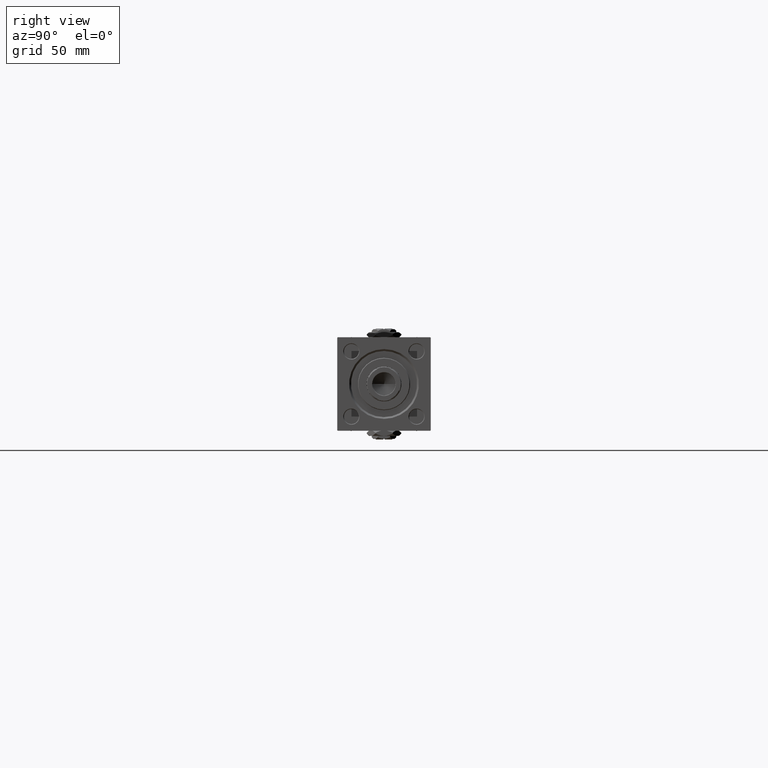
[diagram: clean part render]
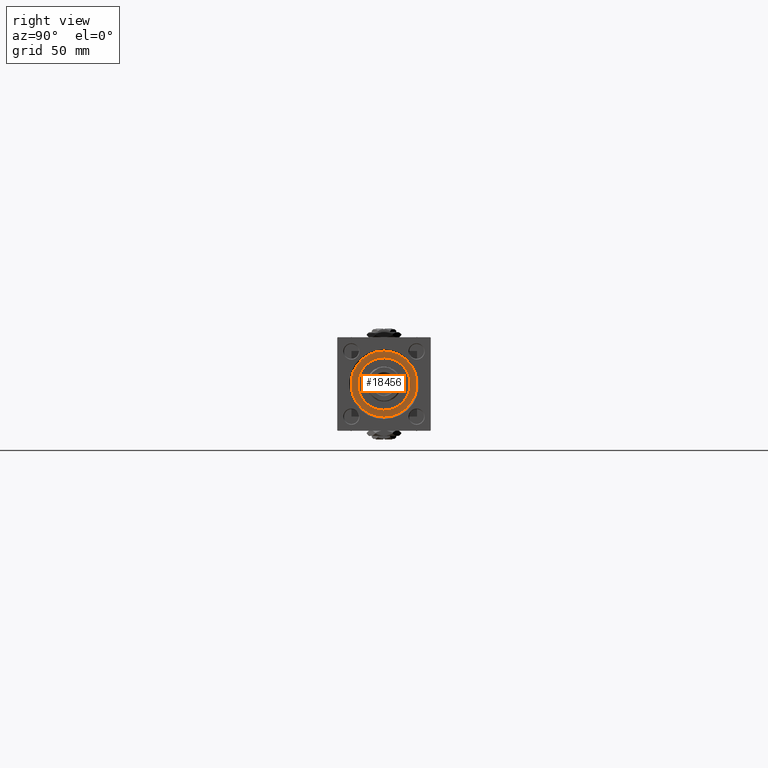
[diagram: same view with one face highlighted and labeled with its STEP entity id]
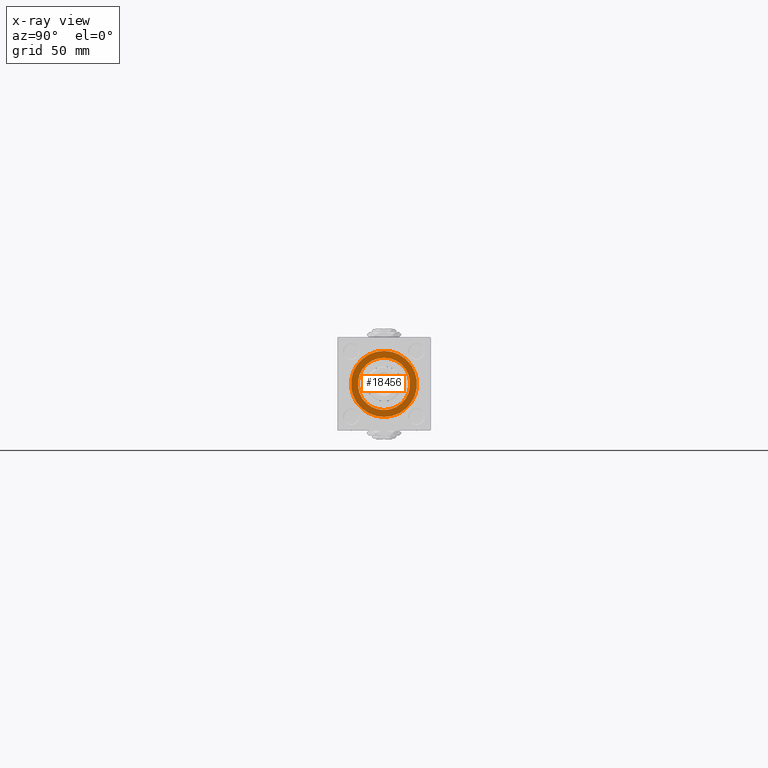
[diagram: x-ray of the same camera — body ghosted, the highlighted face saturated]
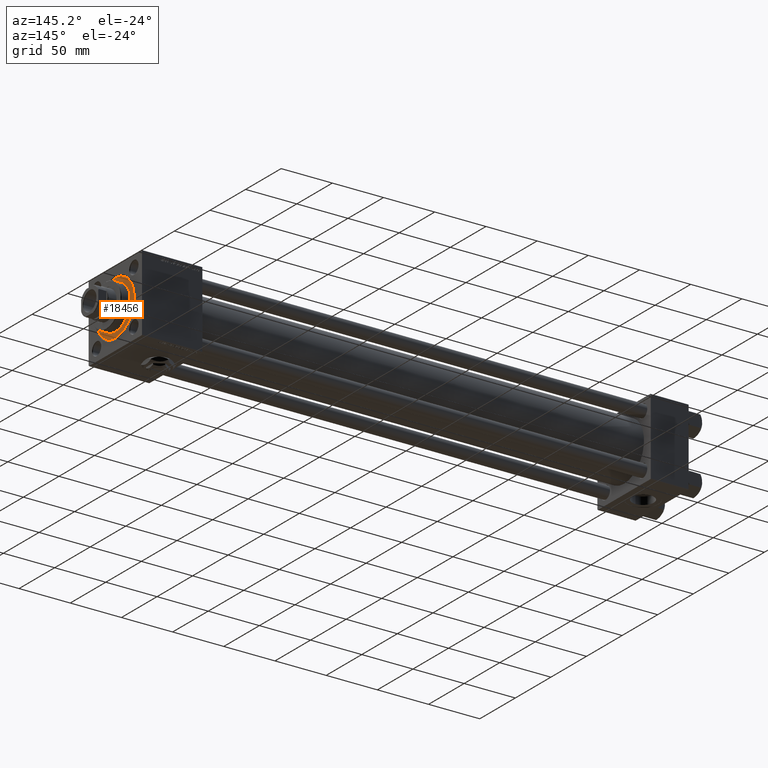
[diagram: same view with one face highlighted and labeled with its STEP entity id]
A machine part, right view. The second image highlights one B-rep face of the part: STEP entity #18456.
The next image is the same camera in x-ray: the body ghosted, the highlighted face saturated — about 0% of this face is hidden behind the body in this view.
A second angle (auxiliary view) of the same face is appended — the face is thin or edge-on in the first view.
In plain terms, the highlighted planar face has unit normal (1, 0, 0).
Its self-contained STEP definition (entity closure, byte-faithful):
#2032 = CIRCLE ( 'NONE', #33195, 26.50000000000000355 ) ;
#2436 = CIRCLE ( 'NONE', #17657, 21.00000000000000000 ) ;
#2910 = FACE_BOUND ( 'NONE', #36572, .T. ) ;
#7235 = CARTESIAN_POINT ( 'NONE',  ( 0.000000000000000000, 0.000000000000000000, 28.69999999999999929 ) ) ;
#10210 = DIRECTION ( 'NONE',  ( 0.000000000000000000, 0.000000000000000000, 1.000000000000000000 ) ) ;
#10229 = DIRECTION ( 'NONE',  ( 1.000000000000000000, 0.000000000000000000, 0.000000000000000000 ) ) ;
#10479 = CARTESIAN_POINT ( 'NONE',  ( 21.00000000000000000, 2.571758278209441661E-15, 28.69999999999999929 ) ) ;
#13944 = VERTEX_POINT ( 'NONE', #15686 ) ;
#14712 = ORIENTED_EDGE ( 'NONE', *, *, #34617, .F. ) ;
#14983 = EDGE_LOOP ( 'NONE', ( #45251, #23719 ) ) ;
#15056 = FACE_OUTER_BOUND ( 'NONE', #14983, .T. ) ;
#15389 = DIRECTION ( 'NONE',  ( 1.000000000000000000, 0.000000000000000000, 0.000000000000000000 ) ) ;
#15560 = PLANE ( 'NONE',  #23488 ) ;
#15686 = CARTESIAN_POINT ( 'NONE',  ( -26.50000000000000355, 0.000000000000000000, 28.69999999999999929 ) ) ;
#16461 = CARTESIAN_POINT ( 'NONE',  ( 0.000000000000000000, 0.000000000000000000, 28.69999999999999929 ) ) ;
#17657 = AXIS2_PLACEMENT_3D ( 'NONE', #7235, #34449, #15389 ) ;
#18456 = ADVANCED_FACE ( 'NONE', ( #2910, #15056 ), #15560, .T. ) ;
#19783 = CARTESIAN_POINT ( 'NONE',  ( 0.000000000000000000, 0.000000000000000000, 28.69999999999999929 ) ) ;
#22584 = CARTESIAN_POINT ( 'NONE',  ( 0.000000000000000000, 0.000000000000000000, 28.69999999999999929 ) ) ;
#23488 = AXIS2_PLACEMENT_3D ( 'NONE', #19783, #38836, #35909 ) ;
#23719 = ORIENTED_EDGE ( 'NONE', *, *, #30702, .T. ) ;
#28160 = CIRCLE ( 'NONE', #34936, 21.00000000000000000 ) ;
#28518 = VERTEX_POINT ( 'NONE', #36008 ) ;
#29405 = DIRECTION ( 'NONE',  ( 0.000000000000000000, 0.000000000000000000, 1.000000000000000000 ) ) ;
#30052 = EDGE_CURVE ( 'NONE', #13944, #46669, #2032, .T. ) ;
#30702 = EDGE_CURVE ( 'NONE', #46669, #13944, #34078, .T. ) ;
#31331 = CARTESIAN_POINT ( 'NONE',  ( 26.50000000000000355, 3.245314017740486554E-15, 28.69999999999999929 ) ) ;
#33195 = AXIS2_PLACEMENT_3D ( 'NONE', #16461, #29405, #44477 ) ;
#34078 = CIRCLE ( 'NONE', #48402, 26.50000000000000355 ) ;
#34449 = DIRECTION ( 'NONE',  ( 0.000000000000000000, 0.000000000000000000, 1.000000000000000000 ) ) ;
#34617 = EDGE_CURVE ( 'NONE', #42680, #28518, #28160, .T. ) ;
#34936 = AXIS2_PLACEMENT_3D ( 'NONE', #50115, #50640, #10229 ) ;
#35909 = DIRECTION ( 'NONE',  ( 1.000000000000000000, 0.000000000000000000, -0.000000000000000000 ) ) ;
#36008 = CARTESIAN_POINT ( 'NONE',  ( -21.00000000000000000, 0.000000000000000000, 28.69999999999999929 ) ) ;
#36572 = EDGE_LOOP ( 'NONE', ( #42094, #14712 ) ) ;
#38836 = DIRECTION ( 'NONE',  ( 0.000000000000000000, 0.000000000000000000, 1.000000000000000000 ) ) ;
#42094 = ORIENTED_EDGE ( 'NONE', *, *, #46180, .F. ) ;
#42680 = VERTEX_POINT ( 'NONE', #10479 ) ;
#44477 = DIRECTION ( 'NONE',  ( 1.000000000000000000, 0.000000000000000000, 0.000000000000000000 ) ) ;
#45251 = ORIENTED_EDGE ( 'NONE', *, *, #30052, .T. ) ;
#46180 = EDGE_CURVE ( 'NONE', #28518, #42680, #2436, .T. ) ;
#46635 = DIRECTION ( 'NONE',  ( 1.000000000000000000, 0.000000000000000000, 0.000000000000000000 ) ) ;
#46669 = VERTEX_POINT ( 'NONE', #31331 ) ;
#48402 = AXIS2_PLACEMENT_3D ( 'NONE', #22584, #10210, #46635 ) ;
#50115 = CARTESIAN_POINT ( 'NONE',  ( 0.000000000000000000, 0.000000000000000000, 28.69999999999999929 ) ) ;
#50640 = DIRECTION ( 'NONE',  ( 0.000000000000000000, 0.000000000000000000, 1.000000000000000000 ) ) ;